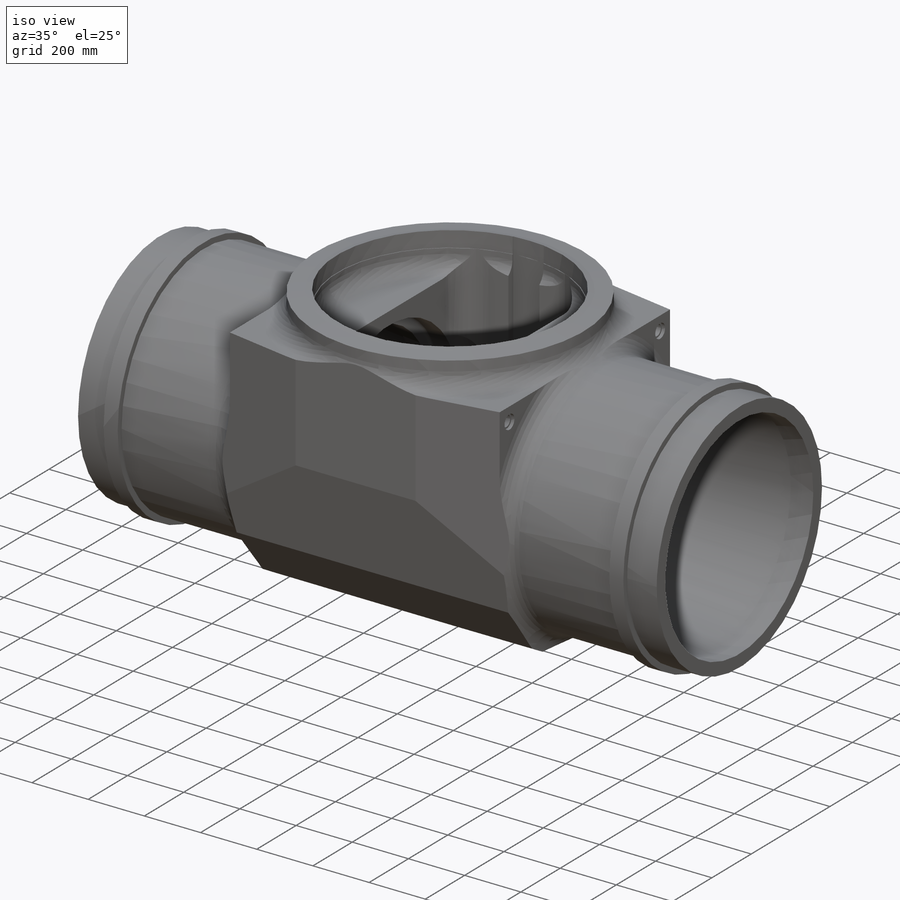
[diagram: iso view]
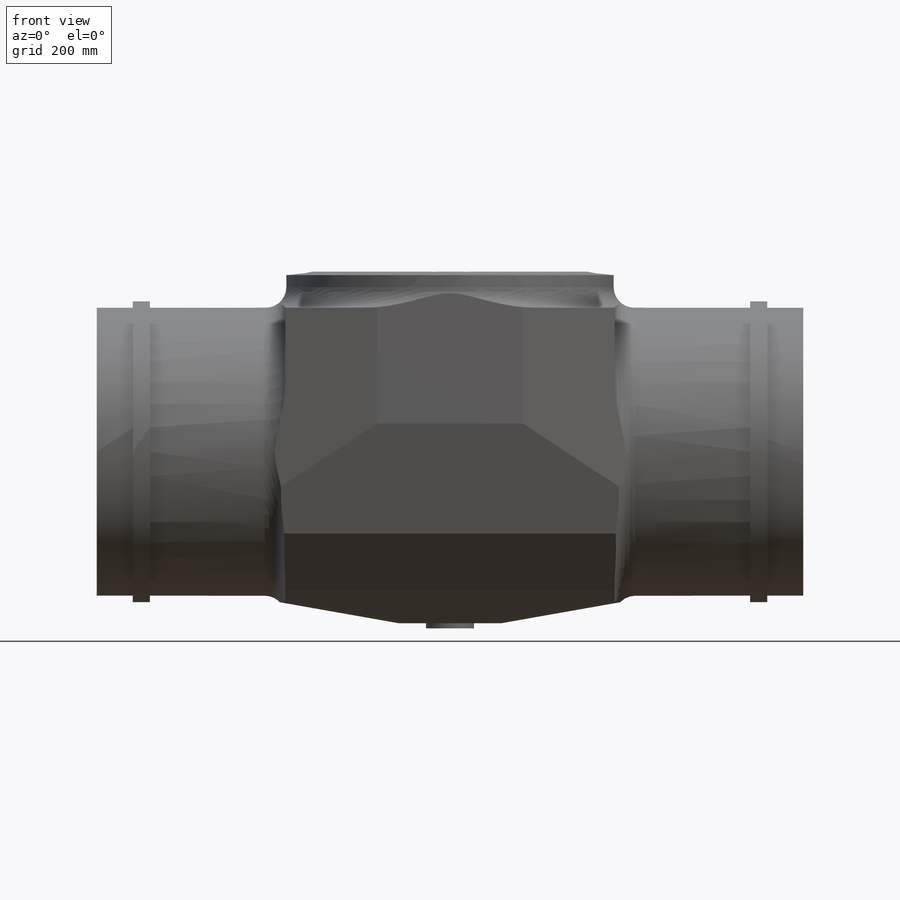
[diagram: front view]
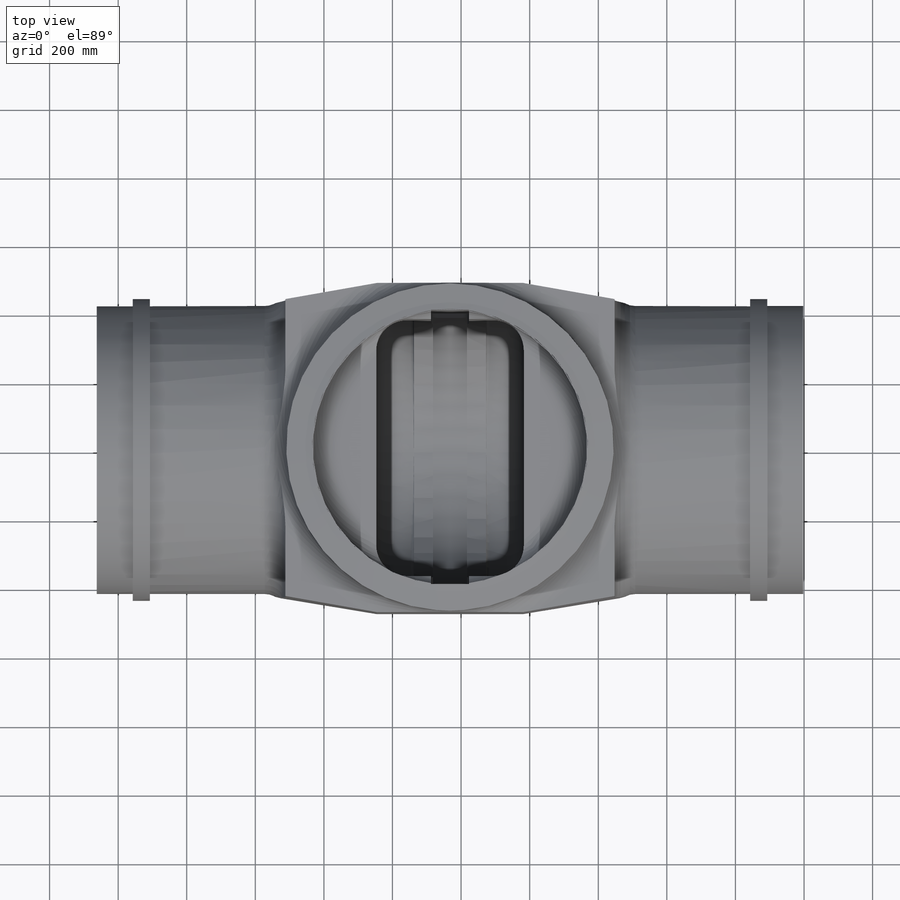
[diagram: top view]
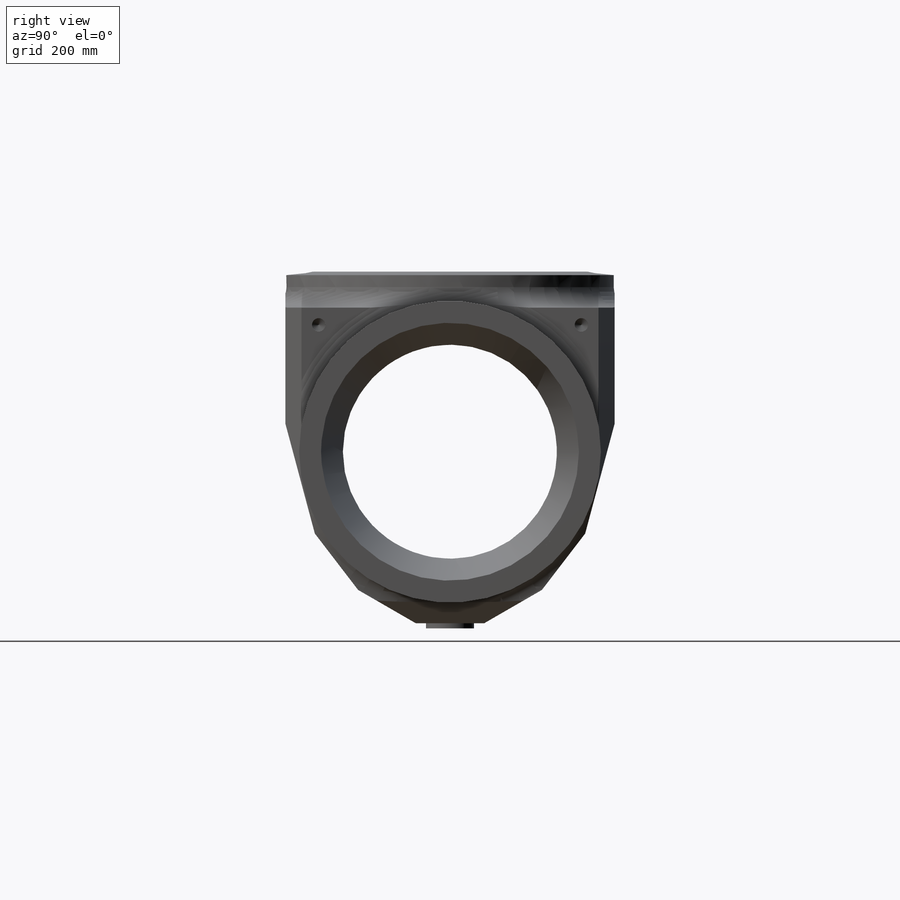
[diagram: right view]
SOLIDWORKS PART (.sldprt)
format: sldprt  version: not decoded by parser v0  size: 2,750,464 bytes
history: native  units: mm
features: sketch x25, cut_extrude x15, cut_revolve x6, plane x5, fillet x5, extrude x2, mirror x2, material x1, hole x1, thread x1 (+10 scaffold rows collapsed)
feature tree (73):
  scaffold x10  (default folders/planes/origin — collapsed)
  material  "Ocel 1.1133/20Mn5"
  plane  "Přední rovina"
  plane  "Horní rovina"
  plane  "Pravá rovina"
  sketch  "Skica1"  dims[D1=2060.0mm D2=1025.0mm]
  extrude  "Přidat vysunutím1"  Depth=960mm
  plane  "Rovina4"  Offset=0mm
  sketch  "Skica2"  dims[c1.D3=840.0mm c1.D4=1500.0mm c1.D1=500.0mm c1.D2=1127.5mm c2.D1=30.0625mm]
  cut_extrude  "Odebrat vysunutím1"  Depth=105mm
  sketch  "Skica3"  dims[c1.D3=880.0mm c1.D1=500.0mm c1.D2=1127.5mm c2.D1=30.0625mm]
  cut_extrude  "Odebrat vysunutím2"  Depth=50mm
  sketch  "Skica36"  dims[c1.D1=0.0mm c1.D2=155.0mm c2.D2=90.0deg c3.D2=~374.68853mm c4.D2=90.0deg c4.D3=335.0mm c4.D4=300.0mm c4.D5=155.0mm c4.D1=335.0mm c5.D2=420.0mm c5.D3=1025.0mm c6.D3=90.0deg c6.D1=335.0mm]
  cut_revolve  "Odebrat rotací7"  Angle=360deg
  plane  "Rovina3"  Offset=1030mm
  sketch  "Skica5"  dims[c1.D1=60.0mm c1.D2=60.0mm c1.D3=60.0mm c2.D2=420.0mm c2.D3=60.0mm c2.D1=60.0mm c3.D2=500.0mm]
  cut_revolve  "Odebrat rotací8"  Angle=360deg
  mirror  "Zrcadlit1"
  sketch  "Skica6"  dims[c1.D1=600.0mm c1.D2=1000.0mm c2.D2=22.5deg c2.D3=194.01mm c2.D4=194.01mm c3.D4=157.5deg c3.D5=207.19mm c3.D6=207.19mm c4.D6=157.5deg c4.D7=~194.031598mm c4.D8=100.0mm c4.D1=100.0mm c4.D2=400.0mm c5.D2=22.5deg c5.D1=100.0mm c5.D7=400.0mm c6.D2=~570.457191mm c7.D2=22.5deg c8.D2=194.01mm c9.D2=157.5deg c9.D4=207.19mm c10.D4=157.5deg c11.D4=~179.241868mm c11.D6=~146.505454mm c11.D3=207.19mm c12.D3=157.5deg c12.D4=~179.241868mm c12.D5=~146.505454mm c12.D1=100.0mm c12.D2=194.01mm c13.D3=207.19mm c13.D4=400.0mm c13.D5=194.01mm c14.D5=157.5deg c14.D6=~511.053941mm c15.D6=22.5deg c15.D7=207.19mm c16.D7=157.5deg c16.D1=100.0mm c16.D2=~473.696381mm c17.D2=30.0deg c17.D3=~151.054159mm c18.D3=157.5deg c18.D4=207.19mm c18.D5=194.01mm c18.D6=207.19mm c19.D6=157.5deg c19.D7=410.0mm c19.D8=~693.749649mm]
  cut_extrude  "Odebrat vysunutím4"  Depth=3000mm
  sketch  "Skica9"  dims[c1.D1=402.0mm c1.D2=422.0mm c1.D3=477.4mm c1.D4=1020.75mm c1.D5=1014.93mm c1.D6=544.9925mm c2.D5=550.8125mm c2.D4=~301.489146mm]
  sketch  "Skica10"  dims[c1.D3=140.0mm c1.D4=75.0mm c1.D1=1030.0mm c1.D2=500.0mm c1.D5=~167.695072mm c2.D2=0.0mm]
  extrude  "Přidat vysunutím2"  Depth=15mm
  cut_revolve  "Odebrat rotací2"  Angle=360deg
  sketch  "Skica12"  dims[D1=954.8mm]
  cut_extrude  "Odebrat vysunutím5"  Depth=34.93mm
  sketch  "Skica14"  dims[c1.D2=60.0mm c1.D1=60.0mm c2.D2=60.0mm c2.D3=60.0mm c3.D2=60.0mm c3.D1=60.0mm c4.D2=~163.699092mm]
  cut_revolve  "Odebrat rotací3"  Angle=360deg
  sketch  "Skica15"  dims[c1.D1=752.0mm c1.D2=752.0mm c2.D1=~681.030903mm c2.D2=752.0mm c3.D1=500.0mm c3.D2=515.0mm c4.D1=515.0mm]
  cut_extrude  "Odebrat vysunutím6"  Depth=80.37mm
  sketch  "Skica16"  dims[c1.D1=~822.823328mm c1.D2=469.9375mm c1.D3=~822.823328mm c2.D1=500.0mm c2.D2=376.0mm c2.D3=80.37mm c2.D4=312.5mm c2.D5=604.16mm c3.D1=30.0625mm c3.D6=~607.487906mm c4.D6=~83.999979deg c5.D6=~607.487906mm]
  cut_revolve  "Odebrat rotací4"  Angle=360deg
  sketch  "Skica17"  dims[D1=625.0mm]
  cut_extrude  "Odebrat vysunutím7"  Depth=55.47mm
  sketch  "Skica18"  dims[D1=700.0mm]
  cut_extrude  "Odebrat vysunutím8"  Depth=75mm
  sketch  "Skica19"  dims[c1.D2=800.0mm c1.D1=500.0mm c2.D2=~509.901951mm c3.D2=90.0deg c4.D2=500.0mm c4.D3=30.0625mm]
  cut_extrude  "Odebrat vysunutím9"  Depth=100mm
  sketch  "Skica20"  dims[D1=800.0mm D2=500.0mm]
  cut_extrude  "Odebrat vysunutím10"  Depth=110mm
  sketch  "Skica21"  dims[D2=750.0mm D1=25.0mm]
  cut_extrude  "Odebrat vysunutím11"  Depth=55mm
  sketch  "Skica22"
  cut_extrude  "Odebrat vysunutím12"  Depth=56.32mm
  sketch  "Skica23"  dims[D1=799.5mm]
  cut_extrude  "Odebrat vysunutím13"  Depth=73.68mm
  sketch  "Skica24"  dims[c1.D5=90.0mm c1.D6=90.0mm c1.D7=90.0mm c1.D8=90.0mm c1.D9=799.5mm c1.D1=215.0mm c1.D2=430.0mm c1.D3=375.0mm c1.D4=750.0mm c2.D1=750.0mm c2.D2=430.0mm c2.D4=215.0mm c2.D9=752.0mm]
  sketch  "Skica25"  dims[D1=110.0mm D2=800.0mm D3=55.0mm D4=400.0mm]
  fillet  "Zaoblit1"  Radius=55mm
  cut_extrude  "Odebrat vysunutím16"  Depth=468.68mm
  cut_extrude  "Odebrat vysunutím17"  Depth=990mm
  fillet  "Zaoblit5"  Radius=10mm
  fillet  "Zaoblit6"  Radius=50mm
  fillet  "Zaoblit7"  Radius=20mm
  fillet  "Zaoblit8"  Radius=10mm
  mirror  "Osa5"
  sketch  "Skica37"  dims[c1.D1=150.0mm c1.D2=~405.013281mm c2.D2=12.0deg c2.D3=0.0mm c3.D2=410.0mm c3.D4=410.0mm c4.D4=~11.04094deg c5.D4=410.0mm c6.D4=~11.04094deg c6.D3=410.0mm c7.D3=10.0deg c7.D1=150.0mm c7.D2=410.0mm c8.D2=10.0deg c8.D1=150.0mm c9.D2=~421.976929mm c10.D2=10.0deg c10.D3=420.0mm]
  sketch  "Skica40"  dims[c1.D1=100.0mm c1.D2=500.0mm c1.D3=440.0mm c1.D4=440.0mm c2.D4=14.0deg c3.D4=440.0mm c4.D4=10.0deg c4.D2=500.0mm]
  cut_extrude  "Odebrat vysunutím19"  Depth=2000mm
  cut_revolve  "Odebrat rotací9"  Angle=360deg
  hole  "Díra1"  Diameter=38.75mm Depth=75mm
  sketch  "3DSkica2"  dims[D1=50.0mm D2=50.0mm]
  sketch  "Skica43"  dims[hole-wizard template sketch: 28 standard entries collapsed; hole parameters kept: c8.Průměr díry=38.75mm c8.Hloubka díry=75.0mm c8.Průměr válcového zahloubení=50.0mm c8.Hloubka válcového zahloubení=11.0mm c8.D5=~14.816244mm c8.Úhel vrtání=118.0deg]
  thread  "Kosmetický závit1"  Diameter=49mm  [1 undecoded]
decode coverage: 54 of 57 modeling features carry decoded parameters
note: ~ marks probable driven/reference dimensions
note: 1 parameter value undecoded
note: suppression state not decoded; provenance and decode notes live in map.json
